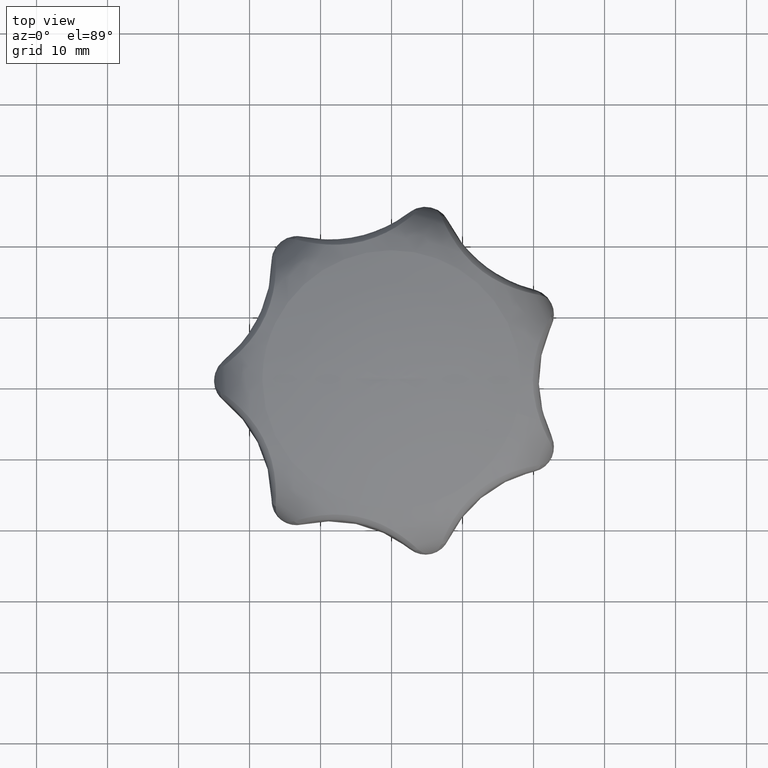
[diagram: clean part render]
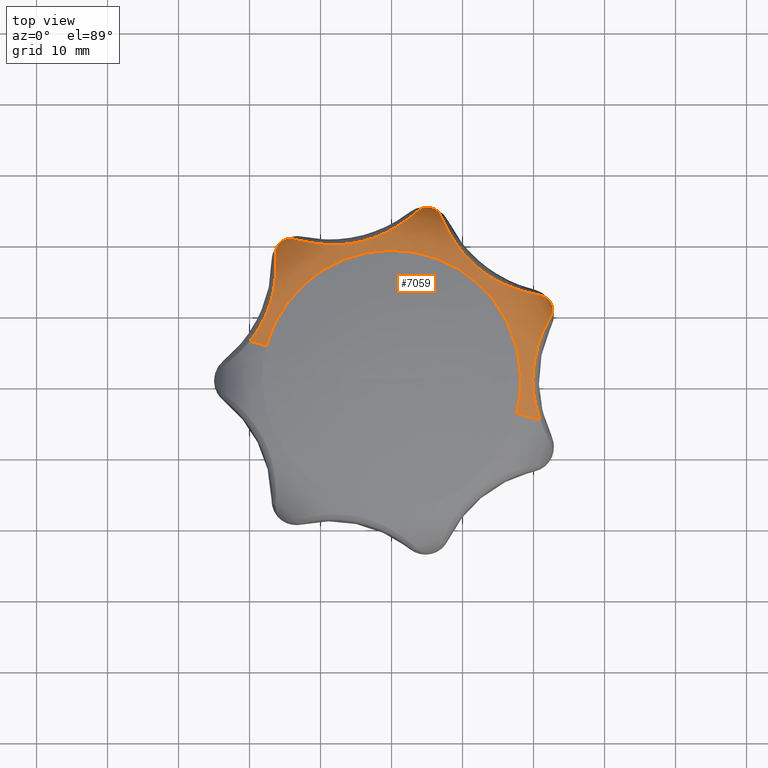
[diagram: same view with one face highlighted and labeled with its STEP entity id]
A machine part, top view. The second image highlights one B-rep face of the part: STEP entity #7059.
In plain terms, the highlighted face is a freeform B-spline surface patch.
Its self-contained STEP definition (entity closure, byte-faithful):
#2347=CARTESIAN_POINT('',(-15.587244335688350,19.545787396947251,21.138975563360098));
#2348=VERTEX_POINT('',#2347);
#2603=CARTESIAN_POINT('',(18.211198396118341,0.0,29.863114584089448));
#2604=VERTEX_POINT('',#2603);
#2635=CARTESIAN_POINT('',(17.580756814753119,-4.750236491872775,29.863114550706520));
#2636=VERTEX_POINT('',#2635);
#2665=CARTESIAN_POINT('',(17.580756814753116,-4.750236491872775,29.863114550706520));
#2666=CARTESIAN_POINT('',(18.211198392261000,-2.416953716395857,29.863114567397851));
#2667=CARTESIAN_POINT('',(18.211198396118341,0.0,29.863114584089448));
#2675=(BOUNDED_CURVE()B_SPLINE_CURVE(2,(#2665,#2666,#2667),.UNSPECIFIED.,.F.,.U.)B_SPLINE_CURVE_WITH_KNOTS((3,3),(0.911044433695594,1.0),.UNSPECIFIED.)CURVE()GEOMETRIC_REPRESENTATION_ITEM()RATIONAL_B_SPLINE_CURVE((0.914323601127632,0.947891035707458,1.0))REPRESENTATION_ITEM(''));
#2676=EDGE_CURVE('',#2636,#2604,#2675,.T.);
#2705=CARTESIAN_POINT('',(-17.580756814698610,4.750236491858051,29.863114550720841));
#2706=VERTEX_POINT('',#2705);
#2707=CARTESIAN_POINT('',(18.211198396118341,0.0,29.863114584089448));
#2708=CARTESIAN_POINT('',(18.211410431293679,1.296520530691283,29.863114583931839));
#2709=CARTESIAN_POINT('',(17.962363891183340,3.616504131363779,29.863114583421591));
#2710=CARTESIAN_POINT('',(16.947389880438820,6.922465418816109,29.863114582089711));
#2711=CARTESIAN_POINT('',(15.709538515159251,9.329846299596072,29.863114580662231));
#2712=CARTESIAN_POINT('',(14.256158514935811,11.397508965529831,29.863114579079902));
#2713=CARTESIAN_POINT('',(12.572443113185200,13.287291573518621,29.863114577306611));
#2714=CARTESIAN_POINT('',(10.440809699022671,15.010826752987620,29.863114575144891));
#2715=CARTESIAN_POINT('',(8.429734768099717,16.176581380683029,29.863114573160701));
#2716=CARTESIAN_POINT('',(6.658413359742786,16.982584529530222,29.863114571439791));
#2717=CARTESIAN_POINT('',(4.749518815495125,17.633605168997519,29.863114569611270));
#2718=CARTESIAN_POINT('',(2.302649744540122,18.128074545571462,29.863114567309310));
#2719=CARTESIAN_POINT('',(-0.532889899372489,18.287288302863701,29.863114564692850));
#2720=CARTESIAN_POINT('',(-3.290995294106149,17.983427934006539,29.863114562202060));
#2721=CARTESIAN_POINT('',(-5.569488233628487,17.373531384217941,29.863114560190340));
#2722=CARTESIAN_POINT('',(-7.451223100596919,16.653491652355431,29.863114558551530));
#2723=CARTESIAN_POINT('',(-9.371860413169774,15.679252525034340,29.863114556912990));
#2724=CARTESIAN_POINT('',(-11.145330630963420,14.454599150731610,29.863114555435828));
#2725=CARTESIAN_POINT('',(-12.840446295423080,12.969198141893941,29.863114554063930));
#2726=CARTESIAN_POINT('',(-14.222413062429879,11.452100985059150,29.863114552982289));
#2727=CARTESIAN_POINT('',(-15.676001940941269,9.382832540922721,29.863114551903291));
#2728=CARTESIAN_POINT('',(-16.802474019166631,7.190615020108313,29.863114551133879));
#2729=CARTESIAN_POINT('',(-17.376081440732559,5.507796340526819,29.863114550820239));
#2730=CARTESIAN_POINT('',(-17.580756814698610,4.750236491858051,29.863114550720841));
#2731=B_SPLINE_CURVE_WITH_KNOTS('',3,(#2707,#2708,#2709,#2710,#2711,#2712,#2713,#2714,#2715,#2716,#2717,#2718,#2719,#2720,#2721,#2722,#2723,#2724,#2725,#2726,#2727,#2728,#2729,#2730),.UNSPECIFIED.,.F.,.U.,(4,1,1,1,1,1,1,1,1,1,1,1,1,1,1,1,1,1,1,1,1,4),(0.000000037024968,3.889530670565605,6.960202205125846,10.337972713889190,11.975686836576390,14.534601073649160,17.912360310791950,20.164201066109300,21.494834625080241,23.746707628739710,26.203229649638342,28.966813933268462,32.242232293615800,34.494057349543937,36.029407062137743,38.281249554339723,40.942518926776749,42.477864155638549,45.036771799661807,47.083896273045987,50.052244967977700,52.406420456960362),.UNSPECIFIED.);
#2732=EDGE_CURVE('',#2604,#2706,#2731,.T.);
#3063=CARTESIAN_POINT('',(-13.733092757587260,19.878280710683750,24.933902485040949));
#3064=VERTEX_POINT('',#3063);
#3079=CARTESIAN_POINT('',(-13.733092757587260,19.878280710683750,24.933902485040949));
#3080=CARTESIAN_POINT('',(-13.909850463415170,19.930232345375849,24.625930404664292));
#3081=CARTESIAN_POINT('',(-14.083383855347099,19.958432854090919,24.316819002044639));
#3082=CARTESIAN_POINT('',(-14.420590399471299,19.974701203642582,23.694377610683429));
#3083=CARTESIAN_POINT('',(-14.584289715234620,19.962705423277178,23.381062645640981));
#3084=CARTESIAN_POINT('',(-14.820124267940770,19.917542895208289,22.906654381801321));
#3085=CARTESIAN_POINT('',(-14.897116407718650,19.897940558948850,22.747779283645311));
#3086=CARTESIAN_POINT('',(-15.047440937990171,19.849940407031820,22.428325421165319));
#3087=CARTESIAN_POINT('',(-15.120902688460120,19.821477599506100,22.267449275166658));
#3088=CARTESIAN_POINT('',(-15.262965918583250,19.756308137754260,21.945447154456240));
#3089=CARTESIAN_POINT('',(-15.331556664335880,19.719631328245342,21.784370714766489));
#3090=CARTESIAN_POINT('',(-15.430516417787050,19.658748046320770,21.542468449512409));
#3091=CARTESIAN_POINT('',(-15.462848059527561,19.637474901608620,21.461786360153869));
#3092=CARTESIAN_POINT('',(-15.510327680205959,19.604122519099910,21.340670384039200));
#3093=CARTESIAN_POINT('',(-15.525981843493630,19.592766418543071,21.300288736536778));
#3094=CARTESIAN_POINT('',(-15.549195940963630,19.575380668527011,21.239721518662972));
#3095=CARTESIAN_POINT('',(-15.556889216038471,19.569527039541882,21.219531935920809));
#3096=CARTESIAN_POINT('',(-15.572195456823540,19.557695681245779,21.179157386164000));
#3097=CARTESIAN_POINT('',(-15.579864758494930,19.551672414191309,21.158963420140161));
#3098=CARTESIAN_POINT('',(-15.587244335688350,19.545787396947251,21.138975563360098));
#3099=B_SPLINE_CURVE_WITH_KNOTS('',3,(#3079,#3080,#3081,#3082,#3083,#3084,#3085,#3086,#3087,#3088,#3089,#3090,#3091,#3092,#3093,#3094,#3095,#3096,#3097,#3098),.UNSPECIFIED.,.F.,.U.,(4,2,2,2,2,2,2,2,2,4),(0.0,0.250000000000000,0.499999999999999,0.625000000000000,0.750000000000000,0.875000000000001,0.937500000000001,0.968750000000000,0.984375000000000,1.0),.UNSPECIFIED.);
#3100=EDGE_CURVE('',#3064,#2348,#3099,.T.);
#3137=CARTESIAN_POINT('',(-16.323989128505151,17.812109902087251,24.933902505942051));
#3138=VERTEX_POINT('',#3137);
#3139=CARTESIAN_POINT('',(-15.587244335688350,19.545787396947251,21.138975563360098));
#3140=CARTESIAN_POINT('',(-15.594624026511591,19.539902521848461,21.158963420591132));
#3141=CARTESIAN_POINT('',(-15.602202857818771,19.533765808183251,21.179157387070529));
#3142=CARTESIAN_POINT('',(-15.617143538170110,19.521476050880612,21.219531937730949));
#3143=CARTESIAN_POINT('',(-15.624562319168190,19.515278216842269,21.239721520924789));
#3144=CARTESIAN_POINT('',(-15.646677794660190,19.496514837314390,21.300288740153199));
#3145=CARTESIAN_POINT('',(-15.661232553023090,19.483780125809080,21.340670388557129));
#3146=CARTESIAN_POINT('',(-15.704313930984190,19.444912518953078,21.461786367387351));
#3147=CARTESIAN_POINT('',(-15.732248180523319,19.418125217111509,21.542468458546129));
#3148=CARTESIAN_POINT('',(-15.813625607832559,19.335194390101449,21.784370729173450));
#3149=CARTESIAN_POINT('',(-15.864645729733979,19.276484711135190,21.945447172408819));
#3150=CARTESIAN_POINT('',(-15.959793299242561,19.152484862924830,22.267449300152581));
#3151=CARTESIAN_POINT('',(-16.003889261981492,19.087198517245071,22.428325449986481));
#3152=CARTESIAN_POINT('',(-16.084136304448020,18.951323964454229,22.747779319881460));
#3153=CARTESIAN_POINT('',(-16.120379531880570,18.880624102723360,22.906654421663571));
#3154=CARTESIAN_POINT('',(-16.216887865303089,18.660752004146389,23.381062696161941));
#3155=CARTESIAN_POINT('',(-16.265009410366051,18.503826270694528,23.694377668017751));
#3156=CARTESIAN_POINT('',(-16.324184455219171,18.171454120553790,24.316819072531171));
#3157=CARTESIAN_POINT('',(-16.335305802906088,17.995996359989540,24.625930469938218));
#3158=CARTESIAN_POINT('',(-16.323989128505250,17.812109902087052,24.933902505941901));
#3159=B_SPLINE_CURVE_WITH_KNOTS('',3,(#3139,#3140,#3141,#3142,#3143,#3144,#3145,#3146,#3147,#3148,#3149,#3150,#3151,#3152,#3153,#3154,#3155,#3156,#3157,#3158),.UNSPECIFIED.,.F.,.U.,(4,2,2,2,2,2,2,2,2,4),(0.0,0.015625000000000,0.031249999999999,0.062499999999999,0.124999999999998,0.249999999999998,0.374999999999998,0.499999999999997,0.749999999999999,1.0),.UNSPECIFIED.);
#3160=EDGE_CURVE('',#2348,#3138,#3159,.T.);
#3205=CARTESIAN_POINT('',(5.563023274532569,24.373197756430201,21.138975563360098));
#3206=VERTEX_POINT('',#3205);
#3207=CARTESIAN_POINT('',(3.748227156224880,23.868277656293799,24.933902289613350));
#3208=VERTEX_POINT('',#3207);
#3209=CARTESIAN_POINT('',(5.563023274532569,24.373197756430201,21.138975563360098));
#3210=CARTESIAN_POINT('',(5.544486930429260,24.377428620688288,21.178887055404211));
#3211=CARTESIAN_POINT('',(5.525378265946180,24.381490404623150,21.219527512025710));
#3212=CARTESIAN_POINT('',(5.487438844420493,24.388944912512390,21.300286409382551));
#3213=CARTESIAN_POINT('',(5.468408374772121,24.392384162484870,21.340668377029019));
#3214=CARTESIAN_POINT('',(5.411161675816205,24.401832516427380,21.461785317381761));
#3215=CARTESIAN_POINT('',(5.372802147355608,24.406970699575890,21.542467563087939));
#3216=CARTESIAN_POINT('',(5.257227263680965,24.418887360580680,21.784370297634279));
#3217=CARTESIAN_POINT('',(5.179515860780748,24.422171561096530,21.945446806778289));
#3218=CARTESIAN_POINT('',(5.023245735550617,24.419248186365639,22.267449063025339));
#3219=CARTESIAN_POINT('',(4.944709561808518,24.413018396419901,22.428325233677210));
#3220=CARTESIAN_POINT('',(4.788445564992701,24.391041612170600,22.747779134418380));
#3221=CARTESIAN_POINT('',(4.710572990350115,24.375297047219629,22.906654241937229));
#3222=CARTESIAN_POINT('',(4.478498328741245,24.313662244867970,23.381062522707008));
#3223=CARTESIAN_POINT('',(4.325805671985314,24.253443573757188,23.694377484139409));
#3224=CARTESIAN_POINT('',(4.029051832857260,24.092477826064219,24.316818861322361));
#3225=CARTESIAN_POINT('',(3.884939461554620,23.991776711257170,24.625930273773740));
#3226=CARTESIAN_POINT('',(3.748227156224880,23.868277656293799,24.933902289613350));
#3227=B_SPLINE_CURVE_WITH_KNOTS('',3,(#3209,#3210,#3211,#3212,#3213,#3214,#3215,#3216,#3217,#3218,#3219,#3220,#3221,#3222,#3223,#3224,#3225,#3226),.UNSPECIFIED.,.F.,.U.,(4,2,2,2,2,2,2,2,4),(0.0,0.031250000000000,0.062499999999999,0.125000000000001,0.250000000000001,0.375000000000002,0.500000000000002,0.750000000000001,1.0),.UNSPECIFIED.);
#3228=EDGE_CURVE('',#3206,#3208,#3227,.T.);
#3313=CARTESIAN_POINT('',(22.435792557005151,8.965443006989050,24.933899135252599));
#3314=VERTEX_POINT('',#3313);
#3328=CARTESIAN_POINT('',(22.524221752267799,10.847094021947340,21.138975563360098));
#3329=VERTEX_POINT('',#3328);
#3357=CARTESIAN_POINT('',(22.435792557005151,8.965443006989050,24.933899135252599));
#3358=CARTESIAN_POINT('',(22.525773380120281,9.126209327408489,24.625927448429501));
#3359=CARTESIAN_POINT('',(22.591881585366998,9.289116476025606,24.316816167305898));
#3360=CARTESIAN_POINT('',(22.682777529388840,9.614248021580622,23.694374967721490));
#3361=CARTESIAN_POINT('',(22.707509057327130,9.776512085627081,23.381060088477639));
#3362=CARTESIAN_POINT('',(22.715957146260781,10.016482748345110,22.906651870543190));
#3363=CARTESIAN_POINT('',(22.713978724891820,10.095906218072720,22.747776773910431));
#3364=CARTESIAN_POINT('',(22.700632648885769,10.253142169382700,22.428322839016449));
#3365=CARTESIAN_POINT('',(22.689230410724068,10.331095241700760,22.267446636420800));
#3366=CARTESIAN_POINT('',(22.657307534154409,10.484096891256590,21.945444055125790));
#3367=CARTESIAN_POINT('',(22.636813474361290,10.559128622321520,21.784367378627330));
#3368=CARTESIAN_POINT('',(22.599479069796931,10.669151326493431,21.542463310610270));
#3369=CARTESIAN_POINT('',(22.585934351109021,10.705404826824219,21.461780620636240));
#3370=CARTESIAN_POINT('',(22.563986934137080,10.759108285653090,21.340660850359420));
#3371=CARTESIAN_POINT('',(22.556400113681551,10.776894488369090,21.300277942711489));
#3372=CARTESIAN_POINT('',(22.544622945482960,10.803380593325789,21.239702993125231));
#3373=CARTESIAN_POINT('',(22.540630340796760,10.812178665465551,21.219510840658209));
#3374=CARTESIAN_POINT('',(22.532520445504652,10.829694697588931,21.179115524821391));
#3375=CARTESIAN_POINT('',(22.528432472639910,10.838350368066680,21.158835668168560));
#3376=CARTESIAN_POINT('',(22.524221752267799,10.847094021947340,21.138975563360098));
#3377=B_SPLINE_CURVE_WITH_KNOTS('',3,(#3357,#3358,#3359,#3360,#3361,#3362,#3363,#3364,#3365,#3366,#3367,#3368,#3369,#3370,#3371,#3372,#3373,#3374,#3375,#3376),.UNSPECIFIED.,.F.,.U.,(4,2,2,2,2,2,2,2,2,4),(0.0,0.250000000000001,0.500000000000002,0.625000000000001,0.750000000000000,0.874999999999999,0.937499999999999,0.968749999999999,0.984375000000000,1.0),.UNSPECIFIED.);
#3378=EDGE_CURVE('',#3314,#3329,#3377,.T.);
#3937=CARTESIAN_POINT('',(-19.997323916434649,5.403177603130812,28.805410721062390));
#3938=VERTEX_POINT('',#3937);
#3964=CARTESIAN_POINT('',(-16.323989128505151,17.812109902087251,24.933902505942051));
#3965=CARTESIAN_POINT('',(-16.309646444380860,17.579053573535639,25.324223951991652));
#3966=CARTESIAN_POINT('',(-16.296646720670878,17.313085595205809,25.689048049533930));
#3967=CARTESIAN_POINT('',(-16.284361340762349,16.867031745280329,26.199942437590622));
#3968=CARTESIAN_POINT('',(-16.281478450186000,16.710459814186532,26.364155177433538));
#3969=CARTESIAN_POINT('',(-16.279748787073181,16.463771832868840,26.601368757217330));
#3970=CARTESIAN_POINT('',(-16.279609367301330,16.379801233561629,26.678686158233170));
#3971=CARTESIAN_POINT('',(-16.280317565833649,16.209356825410190,26.829102536952380));
#3972=CARTESIAN_POINT('',(-16.281164079189271,16.122750818920160,26.902329612227430));
#3973=CARTESIAN_POINT('',(-16.288128447159011,15.683027811630620,27.258863697544950));
#3974=CARTESIAN_POINT('',(-16.302399079212972,15.309904165106280,27.513471245072989));
#3975=CARTESIAN_POINT('',(-16.335790254385600,14.819575491377821,27.797091309510151));
#3976=CARTESIAN_POINT('',(-16.343249050170790,14.720309479701990,27.852077444445129));
#3977=CARTESIAN_POINT('',(-16.359858022334642,14.519431917311611,27.958644450603060));
#3978=CARTESIAN_POINT('',(-16.368989697900702,14.418078422681180,28.010081036229629));
#3979=CARTESIAN_POINT('',(-16.398852654094551,14.112965664108890,28.158332673503349));
#3980=CARTESIAN_POINT('',(-16.422101769255288,13.907531032578010,28.249432666837698));
#3981=CARTESIAN_POINT('',(-16.502799732534939,13.286057083872270,28.501757153389232));
#3982=CARTESIAN_POINT('',(-16.571179936773081,12.864873974749340,28.642094126945899));
#3983=CARTESIAN_POINT('',(-16.699617613127650,12.225816941916230,28.817720030919340));
#3984=CARTESIAN_POINT('',(-16.746745838212679,12.011577050992210,28.870425194678688));
#3985=CARTESIAN_POINT('',(-16.824456995358169,11.688703171610790,28.941393140923822));
#3986=CARTESIAN_POINT('',(-16.851530867669432,11.580825806925560,28.963699461012400));
#3987=CARTESIAN_POINT('',(-16.908114231866062,11.364613482524010,29.005706547140960));
#3988=CARTESIAN_POINT('',(-16.937604076229889,11.256369696052561,29.025385195854678));
#3989=CARTESIAN_POINT('',(-17.090395796059191,10.717400138379199,29.116976857531981));
#3990=CARTESIAN_POINT('',(-17.230386664202250,10.290903971282161,29.169196832137100));
#3991=CARTESIAN_POINT('',(-17.548137763101501,9.448714618633778,29.238238026692599));
#3992=CARTESIAN_POINT('',(-17.725902857513230,9.033024399770566,29.255072077527551));
#3993=CARTESIAN_POINT('',(-18.022347671452209,8.418228373103732,29.254786420791600));
#3994=CARTESIAN_POINT('',(-18.125467905499882,8.216137847531257,29.250382102247428));
#3995=CARTESIAN_POINT('',(-18.339383712928420,7.818801492751815,29.233037026752580));
#3996=CARTESIAN_POINT('',(-18.450284128305210,7.623337300068552,29.220095305824909));
#3997=CARTESIAN_POINT('',(-18.794320777785909,7.046294256508145,29.168066554303529));
#3998=CARTESIAN_POINT('',(-19.038810123402548,6.674054762708346,29.115922714494062));
#3999=CARTESIAN_POINT('',(-19.425912445329850,6.133509433404720,29.007132606646650));
#4000=CARTESIAN_POINT('',(-19.558336632891521,5.956299103998673,28.965736450252521));
#4001=CARTESIAN_POINT('',(-19.793369990766461,5.654187616299849,28.884064948847580));
#4002=CARTESIAN_POINT('',(-19.894585264221661,5.527853126946694,28.846404652800640));
#4003=CARTESIAN_POINT('',(-19.997323916434649,5.403177603130812,28.805410721062390));
#4004=B_SPLINE_CURVE_WITH_KNOTS('',3,(#3964,#3965,#3966,#3967,#3968,#3969,#3970,#3971,#3972,#3973,#3974,#3975,#3976,#3977,#3978,#3979,#3980,#3981,#3982,#3983,#3984,#3985,#3986,#3987,#3988,#3989,#3990,#3991,#3992,#3993,#3994,#3995,#3996,#3997,#3998,#3999,#4000,#4001,#4002,#4003),.UNSPECIFIED.,.F.,.U.,(4,2,2,2,2,2,2,2,2,2,2,2,2,2,2,2,2,2,2,4),(0.0,0.062500000000000,0.093750000000001,0.109375000000001,0.125000000000000,0.187500000000000,0.203125000000000,0.218749999999999,0.249999999999999,0.312499999999999,0.343749999999999,0.359374999999999,0.374999999999999,0.437499999999999,0.499999999999999,0.531249999999999,0.562499999999999,0.624999999999999,0.656249999999999,0.679166898982426),.UNSPECIFIED.);
#4005=EDGE_CURVE('',#3138,#3938,#4004,.T.);
#4359=CARTESIAN_POINT('',(3.748227156224868,23.868277656293799,24.933902289613339));
#4360=CARTESIAN_POINT('',(3.574959135131874,23.711756093669191,25.324223204264140));
#4361=CARTESIAN_POINT('',(3.375122331624003,23.535764321010301,25.689047214432879));
#4362=CARTESIAN_POINT('',(3.034043047058910,23.248049114105651,26.199941902936001));
#4363=CARTESIAN_POINT('',(2.913427524317969,23.148174100287630,26.364154815683960));
#4364=CARTESIAN_POINT('',(2.721637233592090,22.993014151479009,26.601368738950001));
#4365=CARTESIAN_POINT('',(2.656073492417282,22.940550499643798,26.678685905110740));
#4366=CARTESIAN_POINT('',(2.522373290382491,22.834833983484419,26.829102111657608));
#4367=CARTESIAN_POINT('',(2.454134262766726,22.781497913365531,26.902329121468100));
#4368=CARTESIAN_POINT('',(2.106003033272682,22.512780316030700,27.258862967522361));
#4369=CARTESIAN_POINT('',(1.805385644452517,22.291298784461851,27.513470601414170));
#4370=CARTESIAN_POINT('',(1.401211850856351,22.011689936180090,27.797090928784790));
#4371=CARTESIAN_POINT('',(1.318951987856390,21.955630061890780,27.852077124281479));
#4372=CARTESIAN_POINT('',(1.151543847288599,21.843370246327709,27.958644263486800));
#4373=CARTESIAN_POINT('',(1.066609245967838,21.787316990297541,28.010080687251911));
#4374=CARTESIAN_POINT('',(0.809443594476968,21.620430355261711,28.158332129846919));
#4375=CARTESIAN_POINT('',(0.634332929616248,21.510520974693200,28.249432050875189));
#4376=CARTESIAN_POINT('',(0.098131049546947,21.186130771296501,28.501756432175011));
#4377=CARTESIAN_POINT('',(-0.273797508669546,20.976989200627180,28.642093481445979));
#4378=CARTESIAN_POINT('',(-0.853512377227006,20.678960110733719,28.817719551658740));
#4379=CARTESIAN_POINT('',(-1.050396030547286,20.582229969372360,28.870424780490360));
#4380=CARTESIAN_POINT('',(-1.351281508601750,20.441678268929490,28.941392824080630));
#4381=CARTESIAN_POINT('',(-1.452503863493725,20.395584979734771,28.963699176605569));
#4382=CARTESIAN_POINT('',(-1.656824957400161,20.305017330981141,29.005706325430399));
#4383=CARTESIAN_POINT('',(-1.759839765941488,20.260584628746120,29.025384927193009));
#4384=CARTESIAN_POINT('',(-2.276486634542351,20.044000284918869,29.116976474765679));
#4385=CARTESIAN_POINT('',(-2.697217447179574,19.887533626539881,29.169196451927160));
#4386=CARTESIAN_POINT('',(-3.553782337586252,19.610864967689000,29.238237670661618));
#4387=CARTESIAN_POINT('',(-3.989617127963397,19.490668619282619,29.255071746035750));
#4388=CARTESIAN_POINT('',(-4.655115359115895,19.339119315773129,29.254786043744112));
#4389=CARTESIAN_POINT('',(-4.877409438866539,19.293740836151201,29.250381724754249));
#4390=CARTESIAN_POINT('',(-5.321433194752777,19.213251928690699,29.233036668631751));
#4391=CARTESIAN_POINT('',(-5.543398295558648,19.178087476623048,29.220094965794068));
#4392=CARTESIAN_POINT('',(-6.209051594260312,19.087285780918972,29.168066266257501));
#4393=CARTESIAN_POINT('',(-6.652516785382774,19.046347697764809,29.115922460514881));
#4394=CARTESIAN_POINT('',(-7.316487036047323,19.011971964815110,29.007132272536399));
#4395=CARTESIAN_POINT('',(-7.537601048022398,19.005016528487278,28.965736067105471));
#4396=CARTESIAN_POINT('',(-7.979224295684572,18.999700857244989,28.871499949385491));
#4397=CARTESIAN_POINT('',(-8.199942203875393,19.001346103684281,28.818604677891770));
#4398=CARTESIAN_POINT('',(-8.859552405767271,19.018515733555560,28.640863744475570));
#4399=CARTESIAN_POINT('',(-9.287936324974599,19.046001339341540,28.499204527369919));
#4400=CARTESIAN_POINT('',(-10.119557403855170,19.125784164467660,28.162111924405568));
#4401=CARTESIAN_POINT('',(-10.522809650606870,19.178098018683500,27.966718097238310));
#4402=CARTESIAN_POINT('',(-11.008914169760869,19.254792958507679,27.682582433000292));
#4403=CARTESIAN_POINT('',(-11.105436409073491,19.270733215073939,27.623619367868280));
#4404=CARTESIAN_POINT('',(-11.295490076521769,19.303445136431161,27.502210567961701));
#4405=CARTESIAN_POINT('',(-11.388958739693420,19.320202136768231,27.439818730937809));
#4406=CARTESIAN_POINT('',(-11.664678039038829,19.371463389231291,27.247514508771459));
#4407=CARTESIAN_POINT('',(-11.842246280542181,19.406955794472289,27.112477819826591));
#4408=CARTESIAN_POINT('',(-12.355979910826539,19.515779882199809,26.686198106679019));
#4409=CARTESIAN_POINT('',(-12.673280000626510,19.591456208254350,26.373906167099360));
#4410=CARTESIAN_POINT('',(-13.036360580062890,19.684900243469741,25.944803350042079));
#4411=CARTESIAN_POINT('',(-13.107304335235311,19.703537438597412,25.856992168990590));
#4412=CARTESIAN_POINT('',(-13.244347074024169,19.740189885984719,25.679246673843579));
#4413=CARTESIAN_POINT('',(-13.310637962812740,19.758253832822291,25.589093468036950));
#4414=CARTESIAN_POINT('',(-13.502918331632300,19.811496641192949,25.314821259876979));
#4415=CARTESIAN_POINT('',(-13.622326197460641,19.845724916186072,25.126895345015669));
#4416=CARTESIAN_POINT('',(-13.733092757587251,19.878280710683772,24.933902485040939));
#4417=B_SPLINE_CURVE_WITH_KNOTS('',3,(#4359,#4360,#4361,#4362,#4363,#4364,#4365,#4366,#4367,#4368,#4369,#4370,#4371,#4372,#4373,#4374,#4375,#4376,#4377,#4378,#4379,#4380,#4381,#4382,#4383,#4384,#4385,#4386,#4387,#4388,#4389,#4390,#4391,#4392,#4393,#4394,#4395,#4396,#4397,#4398,#4399,#4400,#4401,#4402,#4403,#4404,#4405,#4406,#4407,#4408,#4409,#4410,#4411,#4412,#4413,#4414,#4415,#4416),.UNSPECIFIED.,.F.,.U.,(4,2,2,2,2,2,2,2,2,2,2,2,2,2,2,2,2,2,2,2,2,2,2,2,2,2,2,2,4),(0.0,0.062499999999999,0.093749999999999,0.109374999999998,0.124999999999998,0.187499999999998,0.203124999999998,0.218749999999998,0.249999999999998,0.312499999999997,0.343749999999997,0.359374999999997,0.374999999999997,0.437499999999996,0.499999999999996,0.531249999999996,0.562499999999996,0.624999999999996,0.656249999999996,0.687499999999996,0.749999999999996,0.812499999999996,0.828124999999996,0.843749999999996,0.874999999999997,0.937499999999998,0.953124999999999,0.968749999999999,1.0),.UNSPECIFIED.);
#4418=EDGE_CURVE('',#3208,#3064,#4417,.T.);
#5837=CARTESIAN_POINT('',(19.889992269963791,0.0,29.254883407811139));
#5838=VERTEX_POINT('',#5837);
#5839=CARTESIAN_POINT('',(19.889992269963791,0.0,29.254883407811139));
#5840=CARTESIAN_POINT('',(19.889992268900301,0.002510563281442,29.254883393344031));
#5841=CARTESIAN_POINT('',(19.889992889554769,0.005021229161625,29.254882860418501));
#5842=CARTESIAN_POINT('',(19.890106725109838,0.235043799047878,29.254786548689211));
#5843=CARTESIAN_POINT('',(19.895331118739950,0.461862579006514,29.250382195463668));
#5844=CARTESIAN_POINT('',(19.915664935918930,0.912664478830607,29.233037058388089));
#5845=CARTESIAN_POINT('',(19.930774075944829,1.136889385492626,29.220095309411199));
#5846=CARTESIAN_POINT('',(19.990370957014779,1.806058873884161,29.168066463652341));
#5847=CARTESIAN_POINT('',(20.049139698031869,2.247515076168494,29.115922549220990));
#5848=CARTESIAN_POINT('',(20.163373272289789,2.902487387623627,29.007132224033679));
#5849=CARTESIAN_POINT('',(20.205794764424049,3.119605263042483,28.965735977314839));
#5850=CARTESIAN_POINT('',(20.298882853441199,3.551338726875805,28.871499796203629));
#5851=CARTESIAN_POINT('',(20.349601148602090,3.766156227197648,28.818604589491919));
#5852=CARTESIAN_POINT('',(20.513117681110870,4.405408589094246,28.640863337088049));
#5853=CARTESIAN_POINT('',(20.635238740728649,4.816936111630213,28.499203896015761));
#5854=CARTESIAN_POINT('',(20.898074614849438,5.609953468515620,28.162110918651141));
#5855=CARTESIAN_POINT('',(21.038809004436029,5.991454309759424,27.966716939981531));
#5856=CARTESIAN_POINT('',(21.221749492297690,6.448304647599935,27.682581224078369));
#5857=CARTESIAN_POINT('',(21.258768302834561,6.538859744852048,27.623618171295401));
#5858=CARTESIAN_POINT('',(21.332951091042599,6.716869402238981,27.502209192723949));
#5859=CARTESIAN_POINT('',(21.370086740059719,6.804265875223888,27.439817269432350));
#5860=CARTESIAN_POINT('',(21.481416210825451,7.061665724158089,27.247512800693201));
#5861=CARTESIAN_POINT('',(21.555531466329558,7.226884184840586,27.112475963619708));
#5862=CARTESIAN_POINT('',(21.775943742707302,7.703521777511486,26.686195880681751));
#5863=CARTESIAN_POINT('',(21.920328641434651,7.996026758596835,26.373903792100489));
#5864=CARTESIAN_POINT('',(22.092222815768260,8.329210568684925,25.944801016532931));
#5865=CARTESIAN_POINT('',(22.126179243684678,8.394228475014431,25.856989727141261));
#5866=CARTESIAN_POINT('',(22.192407682622591,8.519679370938373,25.679244006524840));
#5867=CARTESIAN_POINT('',(22.224769866900740,8.580288612947856,25.589090695409080));
#5868=CARTESIAN_POINT('',(22.319464242260221,8.755900477098860,25.314818195690830));
#5869=CARTESIAN_POINT('',(22.379405117677031,8.864697998822518,25.126892118919049));
#5870=CARTESIAN_POINT('',(22.435792557005151,8.965443006989050,24.933899135252599));
#5871=B_SPLINE_CURVE_WITH_KNOTS('',3,(#5839,#5840,#5841,#5842,#5843,#5844,#5845,#5846,#5847,#5848,#5849,#5850,#5851,#5852,#5853,#5854,#5855,#5856,#5857,#5858,#5859,#5860,#5861,#5862,#5863,#5864,#5865,#5866,#5867,#5868,#5869,#5870),.UNSPECIFIED.,.F.,.U.,(4,2,2,2,2,2,2,2,2,2,2,2,2,2,2,4),(0.499655132108705,0.499999999999997,0.531249999999998,0.562499999999998,0.624999999999999,0.656249999999999,0.687499999999999,0.750000000000000,0.812500000000000,0.828125000000000,0.843750000000001,0.875000000000001,0.937500000000001,0.953125000000001,0.968750000000000,1.0),.UNSPECIFIED.);
#5872=EDGE_CURVE('',#5838,#3314,#5871,.T.);
#5874=CARTESIAN_POINT('',(20.917794630277111,-5.651888165317470,28.130033780282130));
#5875=VERTEX_POINT('',#5874);
#5876=CARTESIAN_POINT('',(20.917794630277111,-5.651888165317470,28.130033780282130));
#5877=CARTESIAN_POINT('',(20.865326383210189,-5.505317249460295,28.202096752038990));
#5878=CARTESIAN_POINT('',(20.814137893674179,-5.356886231872329,28.269824522772179));
#5879=CARTESIAN_POINT('',(20.633113524384019,-4.810027287731623,28.501756308914359));
#5880=CARTESIAN_POINT('',(20.511977386493090,-4.400885336305949,28.642093433223501));
#5881=CARTESIAN_POINT('',(20.350419127025319,-3.769387506743609,28.817719583834041));
#5882=CARTESIAN_POINT('',(20.299924927350169,-3.555915710698402,28.870424833764769));
#5883=CARTESIAN_POINT('',(20.229850444225889,-3.231298485145441,28.941392905902081));
#5884=CARTESIAN_POINT('',(20.207436895375359,-3.122357311172057,28.963699267413009));
#5885=CARTESIAN_POINT('',(20.164605672667271,-2.903005883204542,29.005706433932161));
#5886=CARTESIAN_POINT('',(20.144209906730129,-2.792686571566010,29.025385072141340));
#5887=CARTESIAN_POINT('',(20.048020394577470,-2.240798284378554,29.116976755204121));
#5888=CARTESIAN_POINT('',(19.989098028470750,-1.795798842698912,29.169196797117060));
#5889=CARTESIAN_POINT('',(19.910187853361570,-0.901619035745505,29.238047638338369));
#5890=CARTESIAN_POINT('',(19.889992608544620,-0.452475845911230,29.254885916620310));
#5891=CARTESIAN_POINT('',(19.889992269963791,0.0,29.254883407811139));
#5892=B_SPLINE_CURVE_WITH_KNOTS('',3,(#5876,#5877,#5878,#5879,#5880,#5881,#5882,#5883,#5884,#5885,#5886,#5887,#5888,#5889,#5890,#5891),.UNSPECIFIED.,.F.,.U.,(4,2,2,2,2,2,2,4),(0.226326848658892,0.249999999999996,0.312499999999996,0.343749999999996,0.359374999999996,0.374999999999996,0.437499999999997,0.499655132108705),.UNSPECIFIED.);
#5893=EDGE_CURVE('',#5875,#5838,#5892,.T.);
#6876=CARTESIAN_POINT('',(20.917794630277108,-5.651888165317470,28.130033780282133));
#6877=CARTESIAN_POINT('',(19.433280943470201,-5.250779660133701,29.376741071423766));
#6878=CARTESIAN_POINT('',(17.580756814753119,-4.750236491872775,29.863114550706527));
#6886=(BOUNDED_CURVE()B_SPLINE_CURVE(2,(#6876,#6877,#6878),.UNSPECIFIED.,.F.,.U.)B_SPLINE_CURVE_WITH_KNOTS((3,3),(-0.768477255455984,-0.309706225339812),.UNSPECIFIED.)CURVE()GEOMETRIC_REPRESENTATION_ITEM()RATIONAL_B_SPLINE_CURVE((0.811632186542456,0.832773058173298,0.895805362435252))REPRESENTATION_ITEM(''));
#6887=EDGE_CURVE('',#5875,#2636,#6886,.T.);
#6891=CARTESIAN_POINT('',(-19.997323916434649,5.403177603130812,28.805410721062390));
#6892=CARTESIAN_POINT('',(-18.867012367057541,5.097774709752755,29.525412985692039));
#6893=CARTESIAN_POINT('',(-17.580756814698614,4.750236491858052,29.863114550720837));
#6901=(BOUNDED_CURVE()B_SPLINE_CURVE(2,(#6891,#6892,#6893),.UNSPECIFIED.,.F.,.U.)B_SPLINE_CURVE_WITH_KNOTS((3,3),(-0.635244547376800,-0.309706225332552),.UNSPECIFIED.)CURVE()GEOMETRIC_REPRESENTATION_ITEM()RATIONAL_B_SPLINE_CURVE((0.827444413031247,0.851078408865138,0.895805362437247))REPRESENTATION_ITEM(''));
#6902=EDGE_CURVE('',#3938,#2706,#6901,.T.);
#6907=CARTESIAN_POINT('',(23.936339366978448,-7.190985638011100,20.592766949032598));
#6908=CARTESIAN_POINT('',(24.026901850191340,-6.855811379495212,20.592766949032598));
#6909=CARTESIAN_POINT('',(30.635235648995742,17.601815028922022,20.592766949032594));
#6910=CARTESIAN_POINT('',(6.516710310036863,24.118525338958886,20.592766949032605));
#6911=CARTESIAN_POINT('',(-17.601815028922022,30.635235648995742,20.592766949032594));
#6912=CARTESIAN_POINT('',(-24.210149394049896,6.177607144599641,20.592766949032590));
#6913=CARTESIAN_POINT('',(-24.300712430508099,5.842430838507627,20.592766949032594));
#6914=CARTESIAN_POINT('',(24.397157060797994,-7.329425078027112,28.503301051446602));
#6915=CARTESIAN_POINT('',(24.489463035111225,-6.987798110662602,28.503301051446609));
#6916=CARTESIAN_POINT('',(31.225019175413500,17.940681707084860,28.503301051446599));
#6917=CARTESIAN_POINT('',(6.642168734164325,24.582850441249178,28.503301051446609));
#6918=CARTESIAN_POINT('',(-17.940681707084856,31.225019175413500,28.503301051446599));
#6919=CARTESIAN_POINT('',(-24.676238424613370,6.296537221335807,28.503301051446606));
#6920=CARTESIAN_POINT('',(-24.768544962822855,5.954908166975635,28.503301051446599));
#6921=CARTESIAN_POINT('',(16.937341126331294,-5.088337649221662,29.981118083822526));
#6922=CARTESIAN_POINT('',(17.001423091744122,-4.851168520466729,29.981118083822526));
#6923=CARTESIAN_POINT('',(21.677476606486042,12.455035041770914,29.981118083822523));
#6924=CARTESIAN_POINT('',(4.611220782357564,17.066255824128486,29.981118083822537));
#6925=CARTESIAN_POINT('',(-12.455035041770913,21.677476606486042,29.981118083822523));
#6926=CARTESIAN_POINT('',(-17.131088957243030,4.371271561134853,29.981118083822537));
#6927=CARTESIAN_POINT('',(-17.195171314131944,4.134100983516130,29.981118083822530));
#6935=(BOUNDED_SURFACE()B_SPLINE_SURFACE(2,2,((#6907,#6914,#6921),(#6908,#6915,#6922),(#6909,#6916,#6923),(#6910,#6917,#6924),(#6911,#6918,#6925),(#6912,#6919,#6926),(#6913,#6920,#6927)),.UNSPECIFIED.,.F.,.F.,.U.)B_SPLINE_SURFACE_WITH_KNOTS((3,1,2,1,3),(3,3),(0.0,0.827877433829337,42.221746544121288,83.615615654413247,84.443498235316639),(0.0,13.593144044980360),.UNSPECIFIED.)GEOMETRIC_REPRESENTATION_ITEM()RATIONAL_B_SPLINE_SURFACE(((0.925317212067511,0.694848660073887,0.926376427621747),(0.919959597360775,0.690825465269319,0.921012680024844),(0.646721264021332,0.485642542779942,0.647461569306021),(0.914601982654039,0.686802270464751,0.915648932427942),(0.646721264021332,0.485642542779942,0.647461569306021),(0.919959630670101,0.690825490282299,0.921012713372300),(0.925317278686164,0.694848710099847,0.926376494316659)))REPRESENTATION_ITEM('')SURFACE());
#6936=ORIENTED_EDGE('',*,*,#4005,.T.);
#6937=ORIENTED_EDGE('',*,*,#6902,.T.);
#6938=ORIENTED_EDGE('',*,*,#2732,.F.);
#6939=ORIENTED_EDGE('',*,*,#2676,.F.);
#6940=ORIENTED_EDGE('',*,*,#6887,.F.);
#6941=ORIENTED_EDGE('',*,*,#5893,.T.);
#6942=ORIENTED_EDGE('',*,*,#5872,.T.);
#6943=ORIENTED_EDGE('',*,*,#3378,.T.);
#6944=CARTESIAN_POINT('',(20.997952905308050,11.951146681548520,24.933900147921001));
#6945=VERTEX_POINT('',#6944);
#6946=CARTESIAN_POINT('',(22.524221752267799,10.847094021947340,21.138975563360098));
#6947=CARTESIAN_POINT('',(22.520010772997669,10.855837552331909,21.158835672320691));
#6948=CARTESIAN_POINT('',(22.515792307189070,10.864430381856341,21.179115533269631));
#6949=CARTESIAN_POINT('',(22.507154159721249,10.881692023454759,21.219510857553988));
#6950=CARTESIAN_POINT('',(22.502764898661908,10.890299077103659,21.239703014244999));
#6951=CARTESIAN_POINT('',(22.489400173415110,10.916020658318500,21.300277976501309));
#6952=CARTESIAN_POINT('',(22.480224666063449,10.933041792015480,21.340660892586069));
#6953=CARTESIAN_POINT('',(22.451921603703351,10.983684540122880,21.461780688255299));
#6954=CARTESIAN_POINT('',(22.432022470618911,11.016877920160560,21.542463395077281));
#6955=CARTESIAN_POINT('',(22.369280878751450,11.114665180553001,21.784367513422819));
#6956=CARTESIAN_POINT('',(22.323396546163170,11.177469608607330,21.945444223186609));
#6957=CARTESIAN_POINT('',(22.223678624422639,11.297822899513539,22.267446870571710));
#6958=CARTESIAN_POINT('',(22.169841633750110,11.355340479909330,22.428323108664561));
#6959=CARTESIAN_POINT('',(22.055230749383540,11.463809882694051,22.747777112324449));
#6960=CARTESIAN_POINT('',(21.994368499836490,11.514876400625271,22.906652242618531));
#6961=CARTESIAN_POINT('',(21.801484562434819,11.657890681427309,23.381060559585450));
#6962=CARTESIAN_POINT('',(21.659201535066281,11.739724777314260,23.694375502252289));
#6963=CARTESIAN_POINT('',(21.348330719423391,11.871375639728999,24.316816824438511));
#6964=CARTESIAN_POINT('',(21.179746958565708,11.921261087402300,24.625928176275711));
#6965=CARTESIAN_POINT('',(20.997952905308050,11.951146681548520,24.933900147921001));
#6966=B_SPLINE_CURVE_WITH_KNOTS('',3,(#6946,#6947,#6948,#6949,#6950,#6951,#6952,#6953,#6954,#6955,#6956,#6957,#6958,#6959,#6960,#6961,#6962,#6963,#6964,#6965),.UNSPECIFIED.,.F.,.U.,(4,2,2,2,2,2,2,2,2,4),(0.0,0.015624999999999,0.031249999999998,0.062499999999997,0.124999999999996,0.249999999999997,0.374999999999997,0.499999999999998,0.749999999999999,1.0),.UNSPECIFIED.);
#6967=EDGE_CURVE('',#3329,#6945,#6966,.T.);
#6968=ORIENTED_EDGE('',*,*,#6967,.T.);
#6969=CARTESIAN_POINT('',(6.979022394431530,23.130870424844449,24.933900727548401));
#6970=VERTEX_POINT('',#6969);
#6971=CARTESIAN_POINT('',(20.997952905308040,11.951146681548520,24.933900147920991));
#6972=CARTESIAN_POINT('',(20.767548560587080,11.989023472560540,25.324221356810831));
#6973=CARTESIAN_POINT('',(20.505356461936529,12.035533091484680,25.689045504923531));
#6974=CARTESIAN_POINT('',(20.067752368544809,12.122812066786921,26.199940248788110));
#6975=CARTESIAN_POINT('',(19.914464469616892,12.154842004481170,26.364153154416730));
#6976=CARTESIAN_POINT('',(19.673576411401658,12.208048997642930,26.601367037331741));
#6977=CARTESIAN_POINT('',(19.591680278710150,12.226598255008870,26.678684314524119));
#6978=CARTESIAN_POINT('',(19.425667016878229,12.265216115786700,26.829100636344979));
#6979=CARTESIAN_POINT('',(19.341420840264309,12.285313040976840,26.902327696178130));
#6980=CARTESIAN_POINT('',(18.914272615473589,12.389950313628660,27.258861759591550));
#6981=CARTESIAN_POINT('',(18.553679522423842,12.486890958813641,27.513469464056129));
#6982=CARTESIAN_POINT('',(18.083074431840249,12.628553419668931,27.797089817523361));
#6983=CARTESIAN_POINT('',(17.987956907477091,12.657913993942151,27.852076015048901));
#6984=CARTESIAN_POINT('',(17.795811466093749,12.718806059781070,27.958643153314220));
#6985=CARTESIAN_POINT('',(17.699031302980750,12.750261999264060,28.010079656383589));
#6986=CARTESIAN_POINT('',(17.408213770506411,12.847270119121029,28.158331232613669));
#6987=CARTESIAN_POINT('',(17.213103367403409,12.915649789093999,28.249431220089122));
#6988=CARTESIAN_POINT('',(16.625168329168009,13.132615348677421,28.501755754493960));
#6989=CARTESIAN_POINT('',(16.229761182410321,13.293003164695490,28.642092845268831));
#6990=CARTESIAN_POINT('',(15.635306444779300,13.560424329850830,28.817718945828300));
#6991=CARTESIAN_POINT('',(15.436924877802481,13.654043876685961,28.870424179139729));
#6992=CARTESIAN_POINT('',(15.139438215741020,13.801652990553549,28.941392226192029));
#6993=CARTESIAN_POINT('',(15.040289966587681,13.852053090528440,28.963698579316521));
#6994=CARTESIAN_POINT('',(14.842089301900030,13.955329684923640,29.005705728985738));
#6995=CARTESIAN_POINT('',(14.743121653959630,14.008166602479999,29.025384357401570));
#6996=CARTESIAN_POINT('',(14.251664901853610,14.277059354077190,29.116975993830170));
#6997=CARTESIAN_POINT('',(13.867012876263720,14.508444623748881,29.169196000527680));
#6998=CARTESIAN_POINT('',(13.116645106712911,15.005633907923050,29.238237255585521));
#6999=CARTESIAN_POINT('',(12.750933337380950,15.271442003710360,29.255071336756551));
#7000=CARTESIAN_POINT('',(12.217516164304540,15.697259809522160,29.254785659591640));
#7001=CARTESIAN_POINT('',(12.043439440500290,15.842763536374941,29.250381342073592));
#7002=CARTESIAN_POINT('',(11.703666192526089,16.139731430013711,29.233036278422219));
#7003=CARTESIAN_POINT('',(11.537780464720100,16.291346118992990,29.220094567168591));
#7004=CARTESIAN_POINT('',(11.051760638835230,16.755161027373529,29.168065837830849));
#7005=CARTESIAN_POINT('',(10.743257917227110,17.076351616899888,29.115922005394371));
#7006=CARTESIAN_POINT('',(10.302403289482420,17.574031435093019,29.007131810282750));
#7007=CARTESIAN_POINT('',(10.159103024051729,17.742568628316551,28.965735608094210));
#7008=CARTESIAN_POINT('',(9.879599595494566,18.084529150808649,28.871499518309260));
#7009=CARTESIAN_POINT('',(9.743270795080390,18.258118802025798,28.818604354131619));
#7010=CARTESIAN_POINT('',(9.345433954742376,18.784528340500721,28.640863259992901));
#7011=CARTESIAN_POINT('',(9.099829936068041,19.136589546538620,28.499203929810289));
#7012=CARTESIAN_POINT('',(8.643699313577965,19.836520976465810,28.162111180562189));
#7013=CARTESIAN_POINT('',(8.433176309076035,20.184413367439920,27.966717319134322));
#7014=CARTESIAN_POINT('',(8.190057739143203,20.612283458584422,27.682581749514210));
#7015=CARTESIAN_POINT('',(8.142339739048506,20.697686097708619,27.623618725428461));
#7016=CARTESIAN_POINT('',(8.049418352663077,20.866671709364500,27.502209812371941));
#7017=CARTESIAN_POINT('',(8.004242714817231,20.950196322871200,27.439817921726970));
#7018=CARTESIAN_POINT('',(7.872412131576974,21.197723345381540,27.247513550413672));
#7019=CARTESIAN_POINT('',(7.789449197673305,21.358680986401620,27.112476777605728));
#7020=CARTESIAN_POINT('',(7.554223589406190,21.828184861494599,26.686196883955539));
#7021=CARTESIAN_POINT('',(7.415556403442922,22.123443371268859,26.373904916931060));
#7022=CARTESIAN_POINT('',(7.262236956996985,22.465572348609300,25.944802282335029));
#7023=CARTESIAN_POINT('',(7.232575375011308,22.532658550847248,25.856991024703039));
#7024=CARTESIAN_POINT('',(7.175786626928522,22.662655378305349,25.679245366842778));
#7025=CARTESIAN_POINT('',(7.148577883118918,22.725746395582309,25.589092086427069));
#7026=CARTESIAN_POINT('',(7.070319910217031,22.909273644563768,25.314819676692601));
#7027=CARTESIAN_POINT('',(7.022631063338708,23.023971456862480,25.126893657089131));
#7028=CARTESIAN_POINT('',(6.979022394431535,23.130870424844449,24.933900727548401));
#7029=B_SPLINE_CURVE_WITH_KNOTS('',3,(#6971,#6972,#6973,#6974,#6975,#6976,#6977,#6978,#6979,#6980,#6981,#6982,#6983,#6984,#6985,#6986,#6987,#6988,#6989,#6990,#6991,#6992,#6993,#6994,#6995,#6996,#6997,#6998,#6999,#7000,#7001,#7002,#7003,#7004,#7005,#7006,#7007,#7008,#7009,#7010,#7011,#7012,#7013,#7014,#7015,#7016,#7017,#7018,#7019,#7020,#7021,#7022,#7023,#7024,#7025,#7026,#7027,#7028),.UNSPECIFIED.,.F.,.U.,(4,2,2,2,2,2,2,2,2,2,2,2,2,2,2,2,2,2,2,2,2,2,2,2,2,2,2,2,4),(0.0,0.062500000000001,0.093750000000002,0.109375000000003,0.125000000000003,0.187500000000005,0.203125000000005,0.218750000000006,0.250000000000006,0.312500000000006,0.343750000000006,0.359375000000006,0.375000000000006,0.437500000000006,0.500000000000006,0.531250000000006,0.562500000000006,0.625000000000005,0.656250000000005,0.687500000000004,0.750000000000004,0.812500000000003,0.828125000000003,0.843750000000003,0.875000000000002,0.937500000000002,0.953125000000001,0.968750000000001,1.0),.UNSPECIFIED.);
#7030=EDGE_CURVE('',#6945,#6970,#7029,.T.);
#7031=ORIENTED_EDGE('',*,*,#7030,.T.);
#7032=CARTESIAN_POINT('',(6.979022394431530,23.130870424844449,24.933900727548401));
#7033=CARTESIAN_POINT('',(6.909432297724536,23.301456492490850,24.625929036092099));
#7034=CARTESIAN_POINT('',(6.823284076439971,23.454712977212999,24.316817756441019));
#7035=CARTESIAN_POINT('',(6.625758457056371,23.728494623594841,23.694376585957290));
#7036=CARTESIAN_POINT('',(6.514315006007077,23.849000568231428,23.381061731353189));
#7037=CARTESIAN_POINT('',(6.331965278049045,24.005224946095488,22.906653617185171));
#7038=CARTESIAN_POINT('',(6.268635818491308,24.053197927784410,22.747778566261591));
#7039=CARTESIAN_POINT('',(6.137382185865046,24.140798688351651,22.428324781061999));
#7040=CARTESIAN_POINT('',(6.069326542347519,24.180487083738431,22.267448670004040));
#7041=CARTESIAN_POINT('',(5.929800427392264,24.250923986820549,21.945446524751539));
#7042=CARTESIAN_POINT('',(5.858359912019910,24.281682724712450,21.784370071459129));
#7043=CARTESIAN_POINT('',(5.749060097132491,24.321092230258341,21.542467421382248));
#7044=CARTESIAN_POINT('',(5.712269983280163,24.333106458003542,21.461785203947951));
#7045=CARTESIAN_POINT('',(5.656593004814452,24.349432190824789,21.340668306197230));
#7046=CARTESIAN_POINT('',(5.637954910258132,24.354590543109840,21.300286352704681));
#7047=CARTESIAN_POINT('',(5.600538284517718,24.364335558222098,21.219527483688971));
#7048=CARTESIAN_POINT('',(5.581559631671010,24.368966954586082,21.178887041401300));
#7049=CARTESIAN_POINT('',(5.563023274532569,24.373197756430201,21.138975563360098));
#7050=B_SPLINE_CURVE_WITH_KNOTS('',3,(#7032,#7033,#7034,#7035,#7036,#7037,#7038,#7039,#7040,#7041,#7042,#7043,#7044,#7045,#7046,#7047,#7048,#7049),.UNSPECIFIED.,.F.,.U.,(4,2,2,2,2,2,2,2,4),(0.0,0.249999999999999,0.499999999999998,0.624999999999998,0.749999999999999,0.875000000000000,0.937499999999999,0.968749999999999,1.0),.UNSPECIFIED.);
#7051=EDGE_CURVE('',#6970,#3206,#7050,.T.);
#7052=ORIENTED_EDGE('',*,*,#7051,.T.);
#7053=ORIENTED_EDGE('',*,*,#3228,.T.);
#7054=ORIENTED_EDGE('',*,*,#4418,.T.);
#7055=ORIENTED_EDGE('',*,*,#3100,.T.);
#7056=ORIENTED_EDGE('',*,*,#3160,.T.);
#7057=EDGE_LOOP('',(#6936,#6937,#6938,#6939,#6940,#6941,#6942,#6943,#6968,#7031,#7052,#7053,#7054,#7055,#7056));
#7058=FACE_OUTER_BOUND('',#7057,.T.);
#7059=ADVANCED_FACE('',(#7058),#6935,.T.);